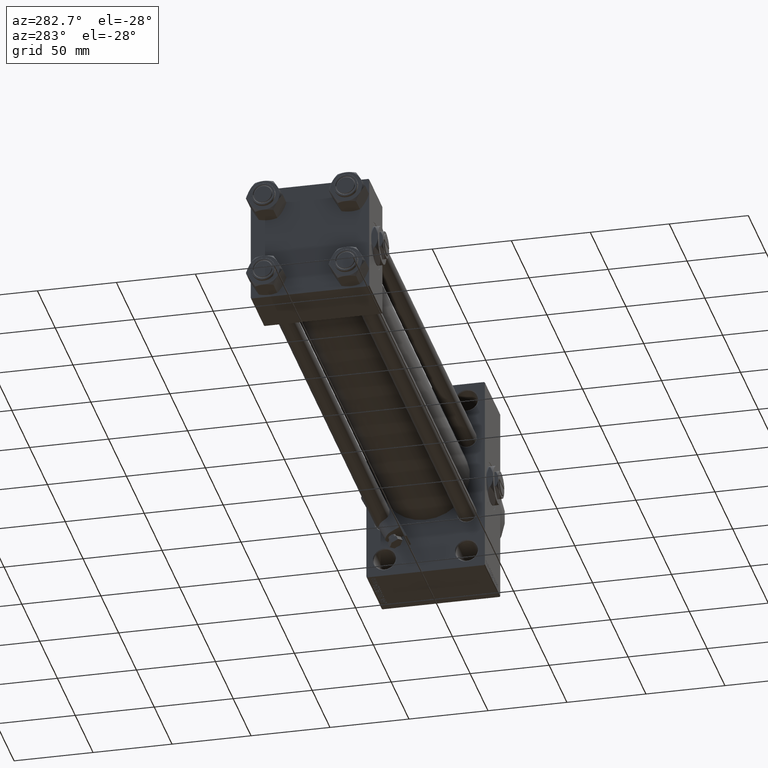
[diagram: clean part render]
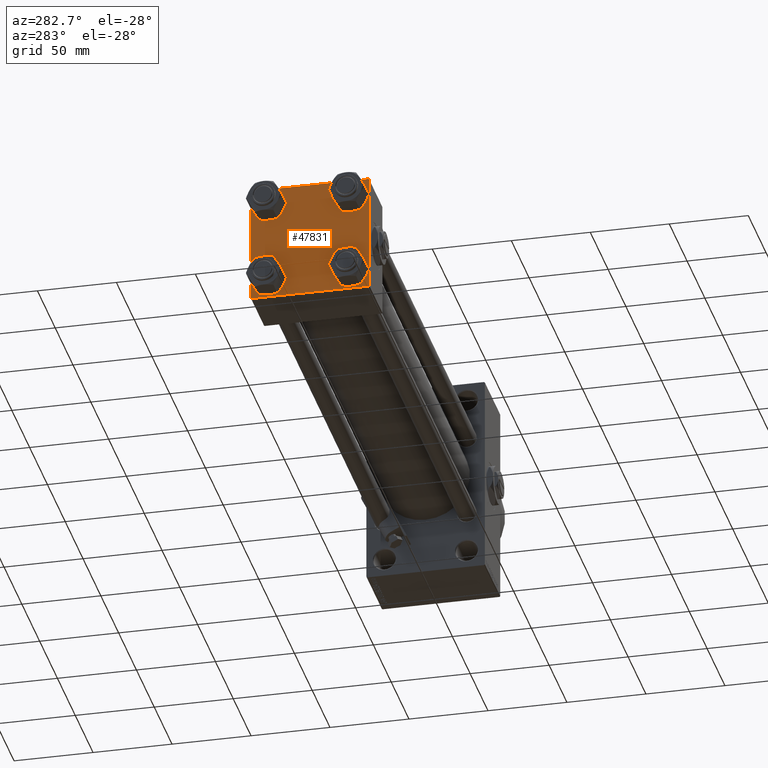
[diagram: same view with one face highlighted and labeled with its STEP entity id]
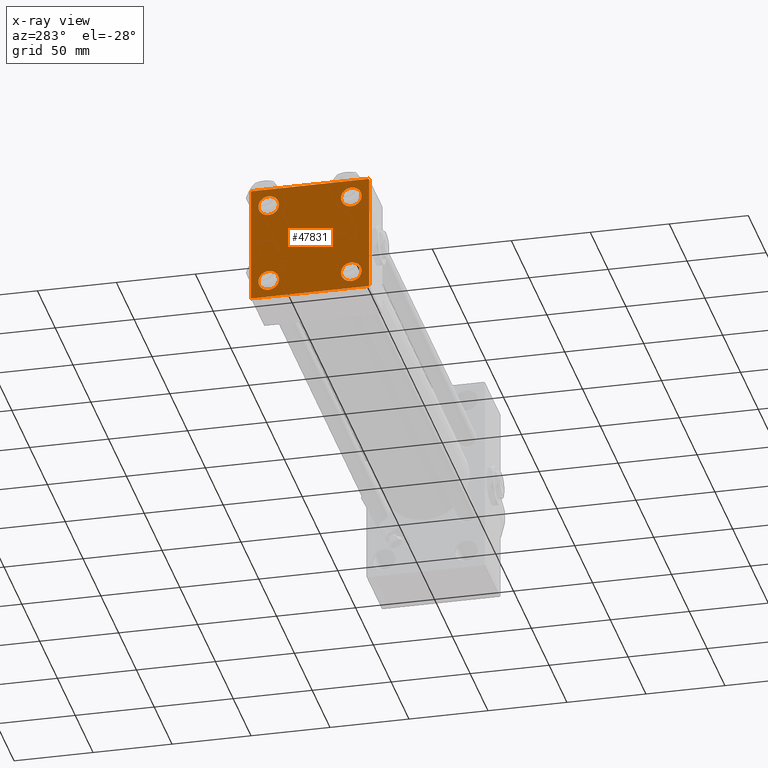
[diagram: x-ray of the same camera — body ghosted, the highlighted face saturated]
A machine part, auxiliary view. The second image highlights one B-rep face of the part: STEP entity #47831.
The next image is the same camera in x-ray: the body ghosted, the highlighted face saturated — about 0% of this face is hidden behind the body in this view.
In plain terms, the highlighted planar face has unit normal (-1, 0, 0).
Its self-contained STEP definition (entity closure, byte-faithful):
#142 = CARTESIAN_POINT ( 'NONE',  ( 0.000000000000000000, 37.49999999999999289, 37.00000000000000000 ) ) ;
#404 = AXIS2_PLACEMENT_3D ( 'NONE', #18131, #45335, #10519 ) ;
#688 = ORIENTED_EDGE ( 'NONE', *, *, #30705, .T. ) ;
#734 = FACE_OUTER_BOUND ( 'NONE', #19636, .T. ) ;
#1482 = VECTOR ( 'NONE', #37079, 1000.000000000000000 ) ;
#1612 = EDGE_CURVE ( 'NONE', #46865, #8807, #22433, .T. ) ;
#1811 = VERTEX_POINT ( 'NONE', #27998 ) ;
#1826 = DIRECTION ( 'NONE',  ( 0.000000000000000000, 0.000000000000000000, 1.000000000000000000 ) ) ;
#2081 = CIRCLE ( 'NONE', #6160, 6.500000000000015987 ) ;
#2442 = ORIENTED_EDGE ( 'NONE', *, *, #21932, .T. ) ;
#3198 = DIRECTION ( 'NONE',  ( 0.000000000000000000, -1.000000000000000000, -9.251858538542971581E-17 ) ) ;
#3260 = DIRECTION ( 'NONE',  ( 1.000000000000000000, -0.000000000000000000, 0.000000000000000000 ) ) ;
#3666 = EDGE_CURVE ( 'NONE', #36487, #16111, #23413, .T. ) ;
#4065 = CARTESIAN_POINT ( 'NONE',  ( 0.000000000000000000, 36.99999999999997868, -37.50000000000000000 ) ) ;
#4071 = DIRECTION ( 'NONE',  ( 0.000000000000000000, 9.251858538542971581E-17, -1.000000000000000000 ) ) ;
#4308 = FACE_BOUND ( 'NONE', #44117, .T. ) ;
#4438 = ORIENTED_EDGE ( 'NONE', *, *, #1612, .T. ) ;
#4701 = LINE ( 'NONE', #20232, #41961 ) ;
#5800 = VECTOR ( 'NONE', #6686, 1000.000000000000000 ) ;
#5908 = AXIS2_PLACEMENT_3D ( 'NONE', #21821, #32760, #45206 ) ;
#6160 = AXIS2_PLACEMENT_3D ( 'NONE', #38095, #3260, #19037 ) ;
#6413 = DIRECTION ( 'NONE',  ( 1.000000000000000000, -0.000000000000000000, 0.000000000000000000 ) ) ;
#6686 = DIRECTION ( 'NONE',  ( 0.000000000000000000, 0.000000000000000000, -1.000000000000000000 ) ) ;
#6906 = VECTOR ( 'NONE', #18724, 1000.000000000000114 ) ;
#7542 = LINE ( 'NONE', #49751, #6906 ) ;
#8473 = LINE ( 'NONE', #47615, #14469 ) ;
#8628 = DIRECTION ( 'NONE',  ( -0.000000000000000000, 0.000000000000000000, 1.000000000000000000 ) ) ;
#8807 = VERTEX_POINT ( 'NONE', #36505 ) ;
#10519 = DIRECTION ( 'NONE',  ( 0.000000000000000000, 0.000000000000000000, 1.000000000000000000 ) ) ;
#10586 = EDGE_CURVE ( 'NONE', #36487, #40510, #8473, .T. ) ;
#11271 = CARTESIAN_POINT ( 'NONE',  ( 0.000000000000000000, 37.49999999999999289, 37.50000000000000000 ) ) ;
#11694 = DIRECTION ( 'NONE',  ( -1.000000000000000000, 0.000000000000000000, -0.000000000000000000 ) ) ;
#12315 = CARTESIAN_POINT ( 'NONE',  ( 0.000000000000000000, -26.14999999999999147, -26.15000000000000924 ) ) ;
#13833 = AXIS2_PLACEMENT_3D ( 'NONE', #12315, #39272, #28321 ) ;
#13883 = DIRECTION ( 'NONE',  ( 1.000000000000000000, -0.000000000000000000, 0.000000000000000000 ) ) ;
#14437 = AXIS2_PLACEMENT_3D ( 'NONE', #42968, #11694, #8628 ) ;
#14469 = VECTOR ( 'NONE', #39485, 1000.000000000000114 ) ;
#14766 = EDGE_CURVE ( 'NONE', #20718, #16111, #44714, .T. ) ;
#14822 = LINE ( 'NONE', #11271, #5800 ) ;
#15106 = CARTESIAN_POINT ( 'NONE',  ( 0.000000000000000000, -26.14999999999999147, -19.64999999999999503 ) ) ;
#15425 = DIRECTION ( 'NONE',  ( 1.000000000000000000, -0.000000000000000000, 0.000000000000000000 ) ) ;
#16111 = VERTEX_POINT ( 'NONE', #40589 ) ;
#17266 = CIRCLE ( 'NONE', #5908, 6.500000000000023093 ) ;
#17725 = VERTEX_POINT ( 'NONE', #15106 ) ;
#17850 = CARTESIAN_POINT ( 'NONE',  ( 0.000000000000000000, 26.14999999999999858, 26.15000000000000213 ) ) ;
#18131 = CARTESIAN_POINT ( 'NONE',  ( 0.000000000000000000, -26.14999999999999147, 26.15000000000000924 ) ) ;
#18318 = VERTEX_POINT ( 'NONE', #20199 ) ;
#18323 = EDGE_CURVE ( 'NONE', #17725, #30004, #44680, .T. ) ;
#18724 = DIRECTION ( 'NONE',  ( -0.000000000000000000, -0.7071067811865474617, -0.7071067811865474617 ) ) ;
#18866 = CIRCLE ( 'NONE', #25347, 6.500000000000023093 ) ;
#19007 = ORIENTED_EDGE ( 'NONE', *, *, #44235, .T. ) ;
#19037 = DIRECTION ( 'NONE',  ( 0.000000000000000000, 0.000000000000000000, 1.000000000000000000 ) ) ;
#19107 = CARTESIAN_POINT ( 'NONE',  ( 0.000000000000000000, 26.14999999999999858, -19.64999999999998792 ) ) ;
#19585 = FACE_BOUND ( 'NONE', #19771, .T. ) ;
#19636 = EDGE_LOOP ( 'NONE', ( #688, #42203, #21777, #47487, #38082, #24639, #33251, #20776 ) ) ;
#19771 = EDGE_LOOP ( 'NONE', ( #40119, #25977 ) ) ;
#20199 = CARTESIAN_POINT ( 'NONE',  ( 0.000000000000000000, -26.14999999999999147, 19.64999999999999147 ) ) ;
#20232 = CARTESIAN_POINT ( 'NONE',  ( 0.000000000000000000, 37.24999999999999289, 37.24999999999999289 ) ) ;
#20249 = ORIENTED_EDGE ( 'NONE', *, *, #43258, .T. ) ;
#20718 = VERTEX_POINT ( 'NONE', #22972 ) ;
#20761 = AXIS2_PLACEMENT_3D ( 'NONE', #39309, #15425, #30936 ) ;
#20776 = ORIENTED_EDGE ( 'NONE', *, *, #44586, .T. ) ;
#21582 = CARTESIAN_POINT ( 'NONE',  ( 0.000000000000000000, -37.24999999999975842, -37.25000000000027001 ) ) ;
#21777 = ORIENTED_EDGE ( 'NONE', *, *, #29856, .T. ) ;
#21821 = CARTESIAN_POINT ( 'NONE',  ( 0.000000000000000000, -26.14999999999999147, 26.15000000000000924 ) ) ;
#21932 = EDGE_CURVE ( 'NONE', #8807, #46865, #18866, .T. ) ;
#22021 = CARTESIAN_POINT ( 'NONE',  ( 0.000000000000000000, 26.14999999999999858, -26.15000000000000213 ) ) ;
#22259 = VERTEX_POINT ( 'NONE', #48444 ) ;
#22319 = CIRCLE ( 'NONE', #404, 6.500000000000023093 ) ;
#22433 = CIRCLE ( 'NONE', #35435, 6.500000000000023093 ) ;
#22692 = CARTESIAN_POINT ( 'NONE',  ( 0.000000000000000000, 37.49999999999999289, -37.50000000000000000 ) ) ;
#22972 = CARTESIAN_POINT ( 'NONE',  ( 0.000000000000000000, -37.00000000000002132, -37.50000000000000711 ) ) ;
#23012 = VERTEX_POINT ( 'NONE', #4065 ) ;
#23105 = VERTEX_POINT ( 'NONE', #37250 ) ;
#23142 = PLANE ( 'NONE',  #14437 ) ;
#23236 = CARTESIAN_POINT ( 'NONE',  ( 0.000000000000000000, 36.99999999999999289, 37.50000000000000000 ) ) ;
#23413 = LINE ( 'NONE', #38909, #37801 ) ;
#23699 = VECTOR ( 'NONE', #38195, 1000.000000000000000 ) ;
#23809 = AXIS2_PLACEMENT_3D ( 'NONE', #22021, #13883, #48469 ) ;
#24639 = ORIENTED_EDGE ( 'NONE', *, *, #10586, .T. ) ;
#25347 = AXIS2_PLACEMENT_3D ( 'NONE', #31210, #46711, #42905 ) ;
#25977 = ORIENTED_EDGE ( 'NONE', *, *, #26855, .T. ) ;
#26492 = VERTEX_POINT ( 'NONE', #142 ) ;
#26596 = CARTESIAN_POINT ( 'NONE',  ( 0.000000000000000000, 37.49999999999999289, 37.50000000000000000 ) ) ;
#26626 = CARTESIAN_POINT ( 'NONE',  ( 0.000000000000000000, 26.14999999999999858, 32.65000000000002700 ) ) ;
#26855 = EDGE_CURVE ( 'NONE', #18318, #23105, #17266, .T. ) ;
#27279 = VECTOR ( 'NONE', #3198, 1000.000000000000000 ) ;
#27998 = CARTESIAN_POINT ( 'NONE',  ( 0.000000000000000000, 37.49999999999999289, -36.99999999999998579 ) ) ;
#28321 = DIRECTION ( 'NONE',  ( 0.000000000000000000, 0.000000000000000000, 1.000000000000000000 ) ) ;
#29856 = EDGE_CURVE ( 'NONE', #23012, #20718, #45823, .T. ) ;
#30004 = VERTEX_POINT ( 'NONE', #48571 ) ;
#30705 = EDGE_CURVE ( 'NONE', #26492, #1811, #14822, .T. ) ;
#30758 = ORIENTED_EDGE ( 'NONE', *, *, #18323, .T. ) ;
#30936 = DIRECTION ( 'NONE',  ( 0.000000000000000000, 0.000000000000000000, 1.000000000000000000 ) ) ;
#31210 = CARTESIAN_POINT ( 'NONE',  ( 0.000000000000000000, 26.14999999999999858, 26.15000000000000213 ) ) ;
#31423 = DIRECTION ( 'NONE',  ( 0.000000000000000000, 0.7071067811865474617, -0.7071067811865474617 ) ) ;
#31763 = FACE_BOUND ( 'NONE', #38801, .T. ) ;
#32224 = VERTEX_POINT ( 'NONE', #19107 ) ;
#32418 = EDGE_LOOP ( 'NONE', ( #47495, #20249 ) ) ;
#32529 = VERTEX_POINT ( 'NONE', #23236 ) ;
#32760 = DIRECTION ( 'NONE',  ( 1.000000000000000000, -0.000000000000000000, 0.000000000000000000 ) ) ;
#33022 = EDGE_CURVE ( 'NONE', #32224, #22259, #35972, .T. ) ;
#33251 = ORIENTED_EDGE ( 'NONE', *, *, #42279, .F. ) ;
#35435 = AXIS2_PLACEMENT_3D ( 'NONE', #17850, #6413, #1826 ) ;
#35972 = CIRCLE ( 'NONE', #23809, 6.500000000000015987 ) ;
#36487 = VERTEX_POINT ( 'NONE', #49830 ) ;
#36505 = CARTESIAN_POINT ( 'NONE',  ( 0.000000000000000000, 26.14999999999999858, 19.64999999999998437 ) ) ;
#37079 = DIRECTION ( 'NONE',  ( 0.000000000000000000, -0.7071067811865524577, 0.7071067811865426878 ) ) ;
#37250 = CARTESIAN_POINT ( 'NONE',  ( 0.000000000000000000, -26.14999999999999147, 32.65000000000003411 ) ) ;
#37801 = VECTOR ( 'NONE', #4071, 1000.000000000000000 ) ;
#37859 = EDGE_CURVE ( 'NONE', #1811, #23012, #7542, .T. ) ;
#38082 = ORIENTED_EDGE ( 'NONE', *, *, #3666, .F. ) ;
#38095 = CARTESIAN_POINT ( 'NONE',  ( 0.000000000000000000, -26.14999999999999147, -26.15000000000000924 ) ) ;
#38195 = DIRECTION ( 'NONE',  ( 0.000000000000000000, -1.000000000000000000, -9.251858538542972814E-17 ) ) ;
#38801 = EDGE_LOOP ( 'NONE', ( #30758, #19007 ) ) ;
#38909 = CARTESIAN_POINT ( 'NONE',  ( 0.000000000000000000, -37.50000000000000711, 37.49999999999999289 ) ) ;
#39272 = DIRECTION ( 'NONE',  ( 1.000000000000000000, -0.000000000000000000, 0.000000000000000000 ) ) ;
#39309 = CARTESIAN_POINT ( 'NONE',  ( 0.000000000000000000, 26.14999999999999858, -26.15000000000000213 ) ) ;
#39485 = DIRECTION ( 'NONE',  ( -0.000000000000000000, 0.7071067811865474617, 0.7071067811865474617 ) ) ;
#40119 = ORIENTED_EDGE ( 'NONE', *, *, #41113, .T. ) ;
#40510 = VERTEX_POINT ( 'NONE', #47328 ) ;
#40589 = CARTESIAN_POINT ( 'NONE',  ( 0.000000000000000000, -37.50000000000000000, -37.00000000000003553 ) ) ;
#41113 = EDGE_CURVE ( 'NONE', #23105, #18318, #22319, .T. ) ;
#41961 = VECTOR ( 'NONE', #31423, 1000.000000000000114 ) ;
#42203 = ORIENTED_EDGE ( 'NONE', *, *, #37859, .T. ) ;
#42279 = EDGE_CURVE ( 'NONE', #32529, #40510, #49489, .T. ) ;
#42721 = FACE_BOUND ( 'NONE', #32418, .T. ) ;
#42905 = DIRECTION ( 'NONE',  ( 0.000000000000000000, 0.000000000000000000, 1.000000000000000000 ) ) ;
#42968 = CARTESIAN_POINT ( 'NONE',  ( 0.000000000000000000, 0.000000000000000000, 0.000000000000000000 ) ) ;
#43258 = EDGE_CURVE ( 'NONE', #22259, #32224, #47557, .T. ) ;
#44117 = EDGE_LOOP ( 'NONE', ( #4438, #2442 ) ) ;
#44235 = EDGE_CURVE ( 'NONE', #30004, #17725, #2081, .T. ) ;
#44586 = EDGE_CURVE ( 'NONE', #32529, #26492, #4701, .T. ) ;
#44680 = CIRCLE ( 'NONE', #13833, 6.500000000000015987 ) ;
#44714 = LINE ( 'NONE', #21582, #1482 ) ;
#45206 = DIRECTION ( 'NONE',  ( 0.000000000000000000, 0.000000000000000000, 1.000000000000000000 ) ) ;
#45335 = DIRECTION ( 'NONE',  ( 1.000000000000000000, -0.000000000000000000, 0.000000000000000000 ) ) ;
#45823 = LINE ( 'NONE', #22692, #23699 ) ;
#46711 = DIRECTION ( 'NONE',  ( 1.000000000000000000, -0.000000000000000000, 0.000000000000000000 ) ) ;
#46865 = VERTEX_POINT ( 'NONE', #26626 ) ;
#47328 = CARTESIAN_POINT ( 'NONE',  ( 0.000000000000000000, -37.00000000000000711, 37.49999999999999289 ) ) ;
#47487 = ORIENTED_EDGE ( 'NONE', *, *, #14766, .T. ) ;
#47495 = ORIENTED_EDGE ( 'NONE', *, *, #33022, .T. ) ;
#47557 = CIRCLE ( 'NONE', #20761, 6.500000000000015987 ) ;
#47615 = CARTESIAN_POINT ( 'NONE',  ( -0.000000000000000000, -37.25000000000000000, 37.25000000000000000 ) ) ;
#47831 = ADVANCED_FACE ( 'NONE', ( #19585, #31763, #42721, #4308, #734 ), #23142, .T. ) ;
#48444 = CARTESIAN_POINT ( 'NONE',  ( 0.000000000000000000, 26.14999999999999858, -32.65000000000001990 ) ) ;
#48469 = DIRECTION ( 'NONE',  ( 0.000000000000000000, 0.000000000000000000, 1.000000000000000000 ) ) ;
#48571 = CARTESIAN_POINT ( 'NONE',  ( 0.000000000000000000, -26.14999999999999147, -32.65000000000002700 ) ) ;
#49489 = LINE ( 'NONE', #26596, #27279 ) ;
#49751 = CARTESIAN_POINT ( 'NONE',  ( 0.000000000000000000, 37.24999999999998579, -37.24999999999998579 ) ) ;
#49830 = CARTESIAN_POINT ( 'NONE',  ( 0.000000000000000000, -37.50000000000000711, 36.99999999999999289 ) ) ;